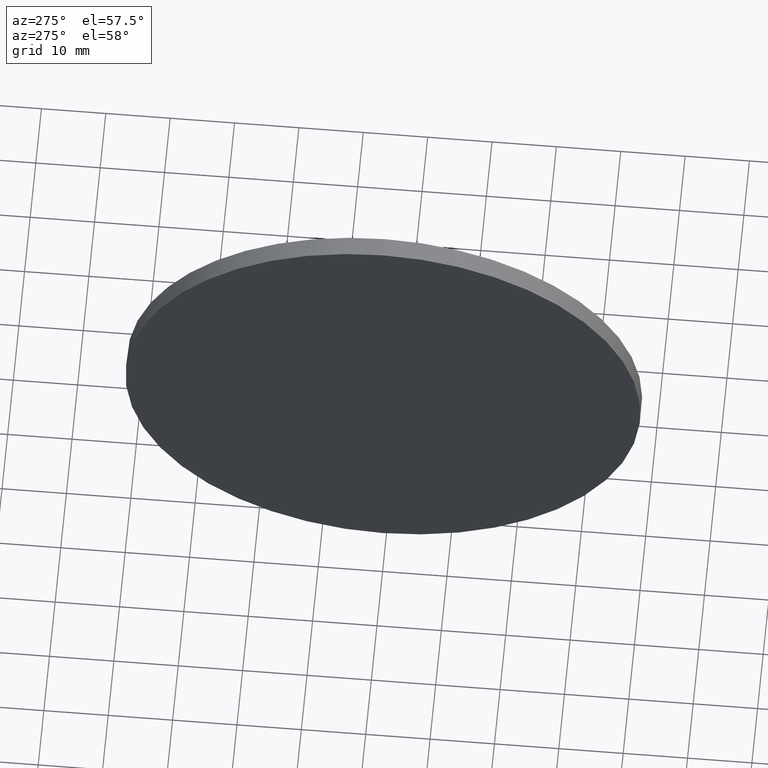
[diagram: clean part render]
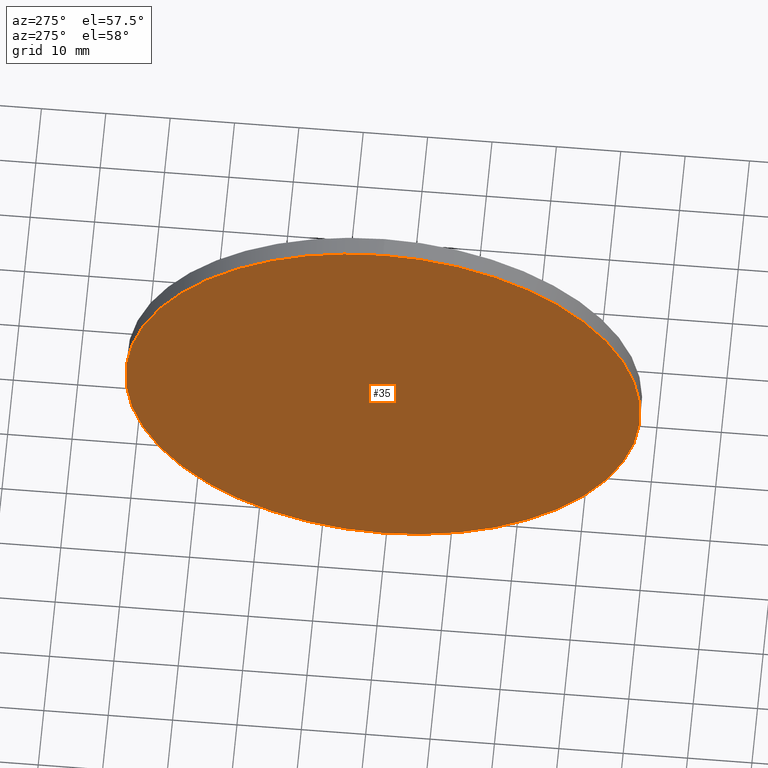
[diagram: same view with one face highlighted and labeled with its STEP entity id]
A machine part, auxiliary view. The second image highlights one B-rep face of the part: STEP entity #35.
In plain terms, the highlighted planar face has unit normal (1, 0, 0).
Its self-contained STEP definition (entity closure, byte-faithful):
#4 = EDGE_LOOP ( 'NONE', ( #44, #145 ) ) ;
#7 = DIRECTION ( 'NONE',  ( -1.000000000000000000, -0.0000000000000000000, -0.0000000000000000000 ) ) ;
#14 = AXIS2_PLACEMENT_3D ( 'NONE', #174, #7, #139 ) ;
#19 = EDGE_CURVE ( 'NONE', #186, #78, #96, .T. ) ;
#21 = AXIS2_PLACEMENT_3D ( 'NONE', #125, #124, #26 ) ;
#26 = DIRECTION ( 'NONE',  ( 0.0000000000000000000, 0.0000000000000000000, -1.000000000000000000 ) ) ;
#34 = CIRCLE ( 'NONE', #60, 40.00000000000000700 ) ;
#35 = ADVANCED_FACE ( 'NONE', ( #45 ), #81, .F. ) ;
#39 = CARTESIAN_POINT ( 'NONE',  ( 225.9490942240209100, 130.4671098528244200, -40.00000000000000700 ) ) ;
#44 = ORIENTED_EDGE ( 'NONE', *, *, #19, .T. ) ;
#45 = FACE_OUTER_BOUND ( 'NONE', #4, .T. ) ;
#50 = CARTESIAN_POINT ( 'NONE',  ( 225.9490942240209100, 130.4671098528244200, 0.0000000000000000000 ) ) ;
#52 = DIRECTION ( 'NONE',  ( 0.0000000000000000000, 0.0000000000000000000, 1.000000000000000000 ) ) ;
#60 = AXIS2_PLACEMENT_3D ( 'NONE', #50, #164, #52 ) ;
#69 = CARTESIAN_POINT ( 'NONE',  ( 225.9490942240209100, 130.4671098528244200, 40.00000000000000700 ) ) ;
#78 = VERTEX_POINT ( 'NONE', #39 ) ;
#81 = PLANE ( 'NONE',  #21 ) ;
#93 = EDGE_CURVE ( 'NONE', #78, #186, #34, .T. ) ;
#96 = CIRCLE ( 'NONE', #14, 40.00000000000000700 ) ;
#124 = DIRECTION ( 'NONE',  ( 1.000000000000000000, 0.0000000000000000000, 0.0000000000000000000 ) ) ;
#125 = CARTESIAN_POINT ( 'NONE',  ( 225.9490942240209100, 130.4671098528244200, 0.0000000000000000000 ) ) ;
#139 = DIRECTION ( 'NONE',  ( 0.0000000000000000000, 0.0000000000000000000, 1.000000000000000000 ) ) ;
#145 = ORIENTED_EDGE ( 'NONE', *, *, #93, .T. ) ;
#164 = DIRECTION ( 'NONE',  ( -1.000000000000000000, -0.0000000000000000000, -0.0000000000000000000 ) ) ;
#174 = CARTESIAN_POINT ( 'NONE',  ( 225.9490942240209100, 130.4671098528244200, 0.0000000000000000000 ) ) ;
#186 = VERTEX_POINT ( 'NONE', #69 ) ;